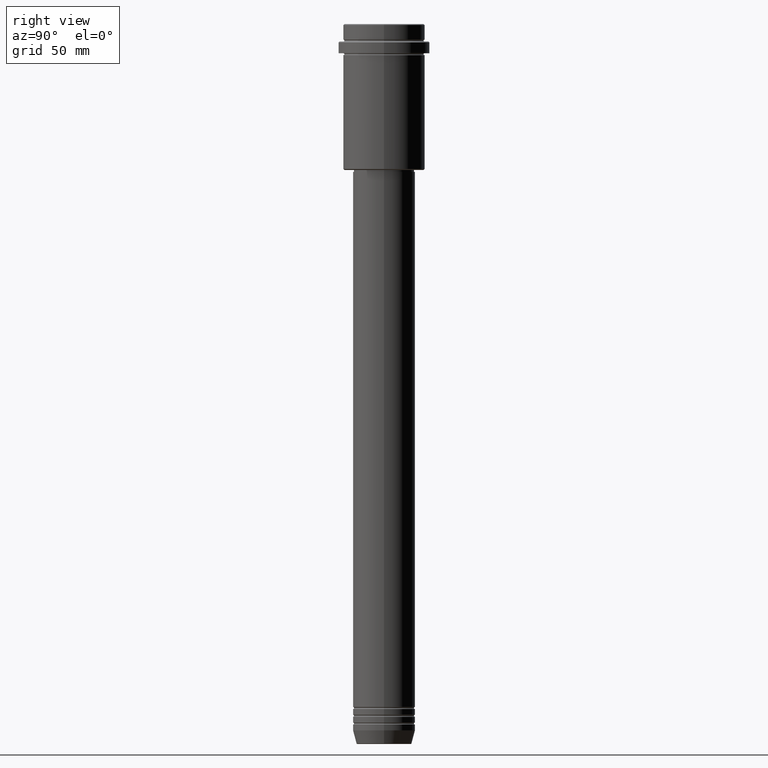
[diagram: clean part render]
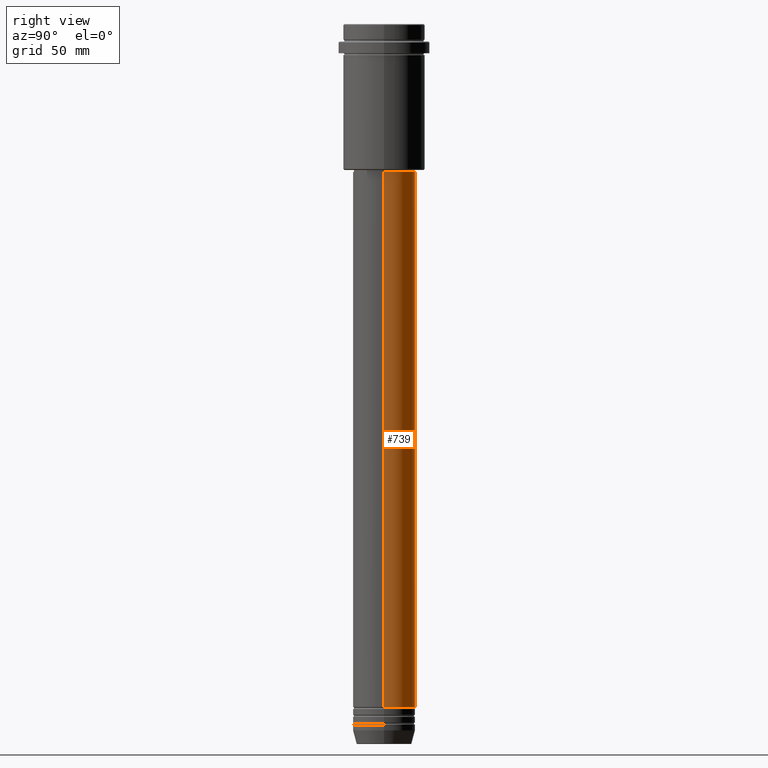
[diagram: same view with one face highlighted and labeled with its STEP entity id]
A machine part, right view. The second image highlights one B-rep face of the part: STEP entity #739.
In plain terms, the highlighted cylindrical surface (edge-blend (fillet) strip) has radius 16 mm, axis along (-0, -0, 1).
Its self-contained STEP definition (entity closure, byte-faithful):
#5 = EDGE_CURVE ( 'NONE', #1357, #655, #211, .T. ) ;
#37 = CIRCLE ( 'NONE', #1100, 16.00000000000000000 ) ;
#43 = DIRECTION ( 'NONE',  ( -0.000000000000000000, -0.000000000000000000, 1.000000000000000000 ) ) ;
#161 = LINE ( 'NONE', #1340, #173 ) ;
#173 = VECTOR ( 'NONE', #591, 1000.000000000000000 ) ;
#208 = EDGE_CURVE ( 'NONE', #228, #1357, #272, .T. ) ;
#211 = CIRCLE ( 'NONE', #1316, 16.00000000000000355 ) ;
#228 = VERTEX_POINT ( 'NONE', #798 ) ;
#272 = LINE ( 'NONE', #1336, #999 ) ;
#297 = FACE_OUTER_BOUND ( 'NONE', #760, .T. ) ;
#336 = ORIENTED_EDGE ( 'NONE', *, *, #208, .F. ) ;
#347 = DIRECTION ( 'NONE',  ( -0.000000000000000000, -0.000000000000000000, 1.000000000000000000 ) ) ;
#357 = DIRECTION ( 'NONE',  ( 1.000000000000000000, 0.000000000000000000, 0.000000000000000000 ) ) ;
#387 = CARTESIAN_POINT ( 'NONE',  ( -16.00000000000000355, 1.959434878635765526E-15, -76.00000000000004263 ) ) ;
#451 = CARTESIAN_POINT ( 'NONE',  ( 16.00000000000000355, 0.000000000000000000, -76.00000000000004263 ) ) ;
#519 = DIRECTION ( 'NONE',  ( 1.000000000000000000, 0.000000000000000000, 0.000000000000000000 ) ) ;
#528 = AXIS2_PLACEMENT_3D ( 'NONE', #1410, #1178, #519 ) ;
#569 = CARTESIAN_POINT ( 'NONE',  ( 0.000000000000000000, 0.000000000000000000, -76.00000000000004263 ) ) ;
#591 = DIRECTION ( 'NONE',  ( -0.000000000000000000, -0.000000000000000000, 1.000000000000000000 ) ) ;
#615 = EDGE_CURVE ( 'NONE', #772, #655, #161, .T. ) ;
#655 = VERTEX_POINT ( 'NONE', #387 ) ;
#659 = ORIENTED_EDGE ( 'NONE', *, *, #805, .T. ) ;
#690 = CARTESIAN_POINT ( 'NONE',  ( -16.00000000000000000, 1.959434878635765131E-15, -350.9999999999999432 ) ) ;
#735 = CYLINDRICAL_SURFACE ( 'NONE', #528, 16.00000000000000000 ) ;
#739 = ADVANCED_FACE ( 'NONE', ( #297 ), #735, .T. ) ;
#746 = ORIENTED_EDGE ( 'NONE', *, *, #5, .F. ) ;
#760 = EDGE_LOOP ( 'NONE', ( #659, #1236, #746, #336 ) ) ;
#772 = VERTEX_POINT ( 'NONE', #690 ) ;
#798 = CARTESIAN_POINT ( 'NONE',  ( 16.00000000000000000, 0.000000000000000000, -350.9999999999999432 ) ) ;
#805 = EDGE_CURVE ( 'NONE', #228, #772, #37, .T. ) ;
#891 = DIRECTION ( 'NONE',  ( -0.000000000000000000, -0.000000000000000000, 1.000000000000000000 ) ) ;
#999 = VECTOR ( 'NONE', #347, 1000.000000000000000 ) ;
#1100 = AXIS2_PLACEMENT_3D ( 'NONE', #1354, #891, #1335 ) ;
#1178 = DIRECTION ( 'NONE',  ( -0.000000000000000000, -0.000000000000000000, 1.000000000000000000 ) ) ;
#1236 = ORIENTED_EDGE ( 'NONE', *, *, #615, .T. ) ;
#1316 = AXIS2_PLACEMENT_3D ( 'NONE', #569, #43, #357 ) ;
#1335 = DIRECTION ( 'NONE',  ( 1.000000000000000000, 0.000000000000000000, 0.000000000000000000 ) ) ;
#1336 = CARTESIAN_POINT ( 'NONE',  ( 16.00000000000000000, 0.000000000000000000, 0.000000000000000000 ) ) ;
#1340 = CARTESIAN_POINT ( 'NONE',  ( -16.00000000000000000, 1.959434878635765131E-15, 0.000000000000000000 ) ) ;
#1354 = CARTESIAN_POINT ( 'NONE',  ( 0.000000000000000000, 0.000000000000000000, -350.9999999999999432 ) ) ;
#1357 = VERTEX_POINT ( 'NONE', #451 ) ;
#1410 = CARTESIAN_POINT ( 'NONE',  ( 0.000000000000000000, 0.000000000000000000, 0.000000000000000000 ) ) ;